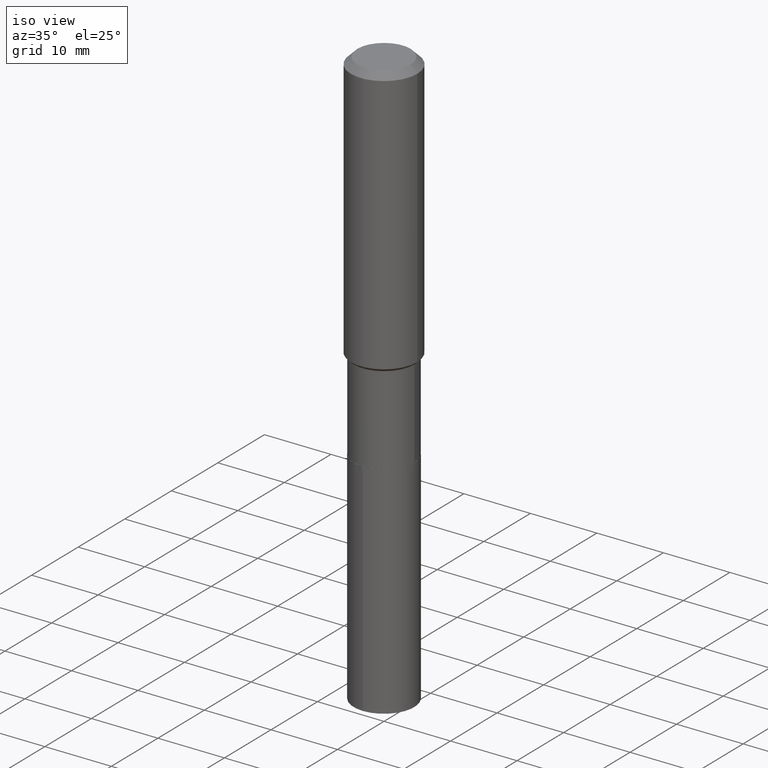
[diagram: clean part render]
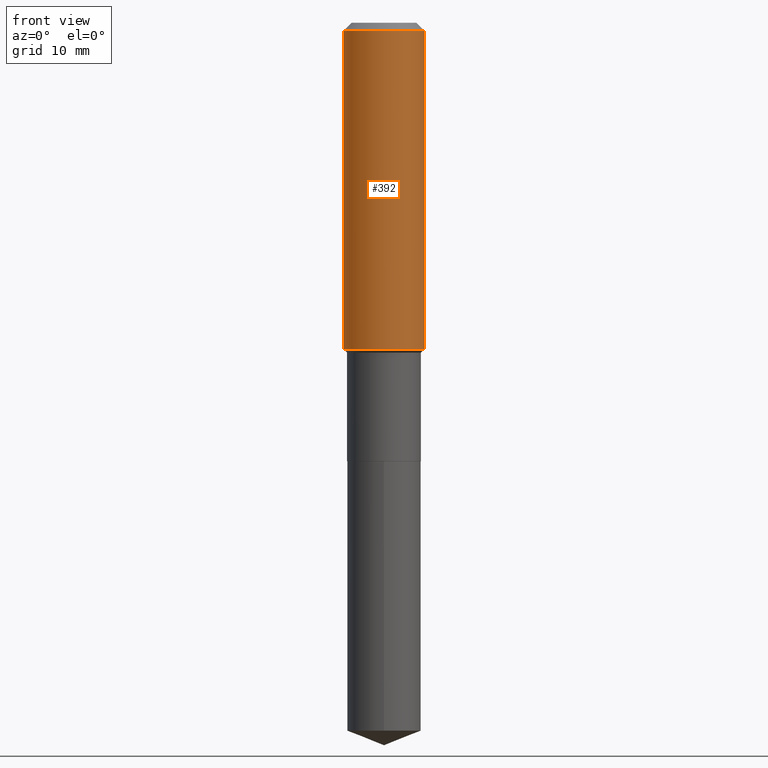
[diagram: tour spotlight — one face highlighted and labeled with its STEP entity id]
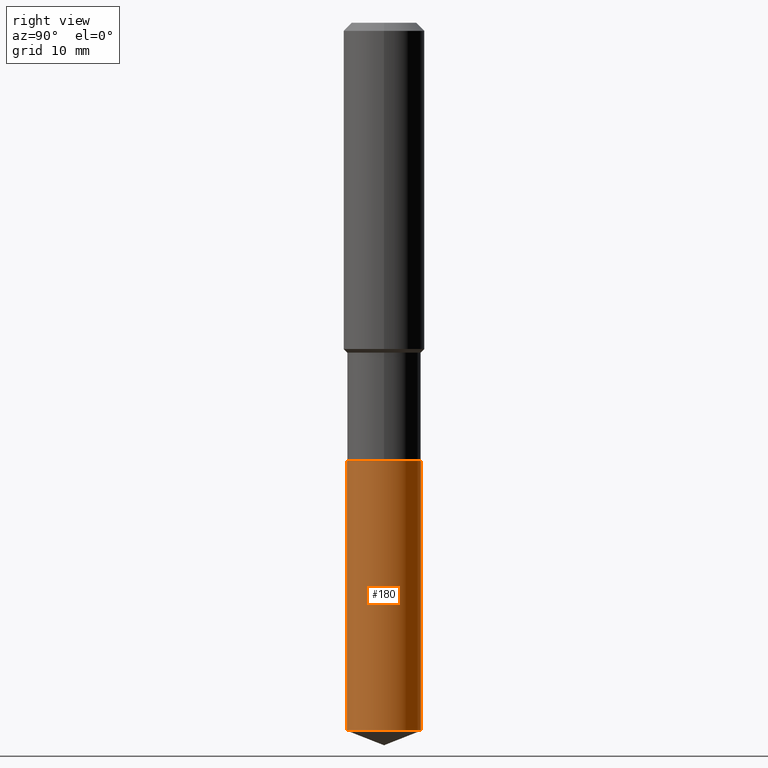
[diagram: tour spotlight — one face highlighted and labeled with its STEP entity id]
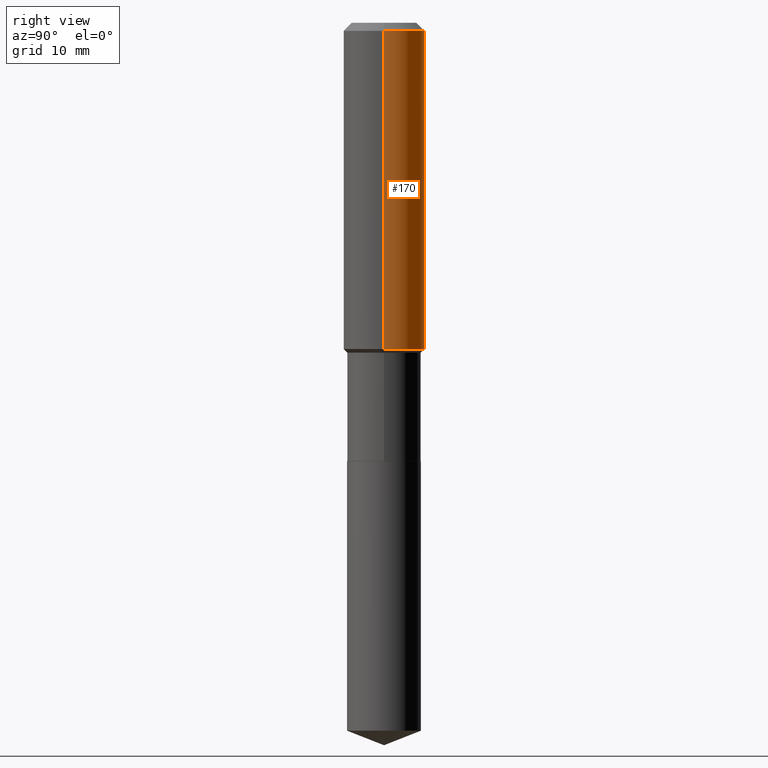
[diagram: tour spotlight — one face highlighted and labeled with its STEP entity id]
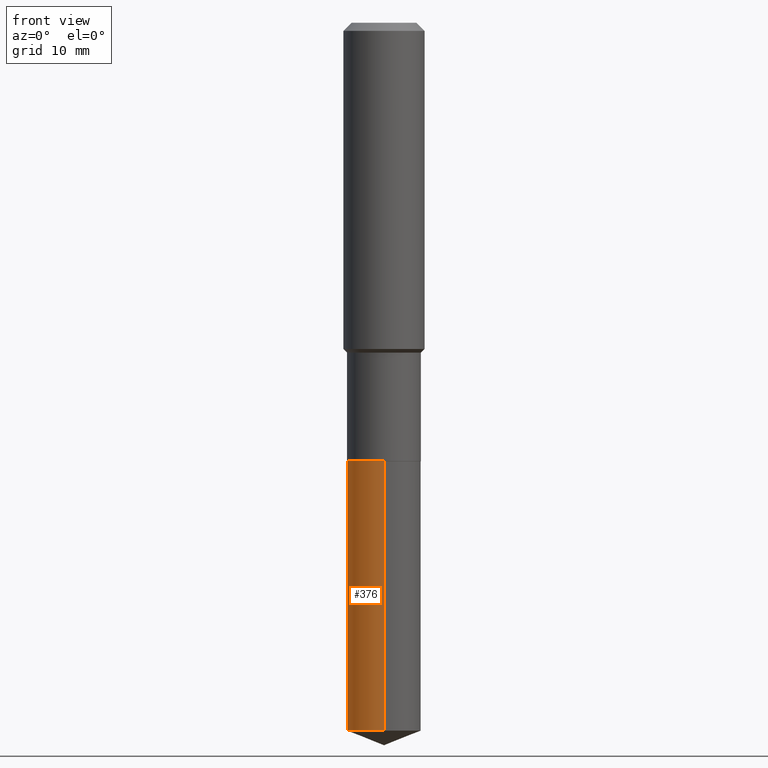
[diagram: tour spotlight — one face highlighted and labeled with its STEP entity id]
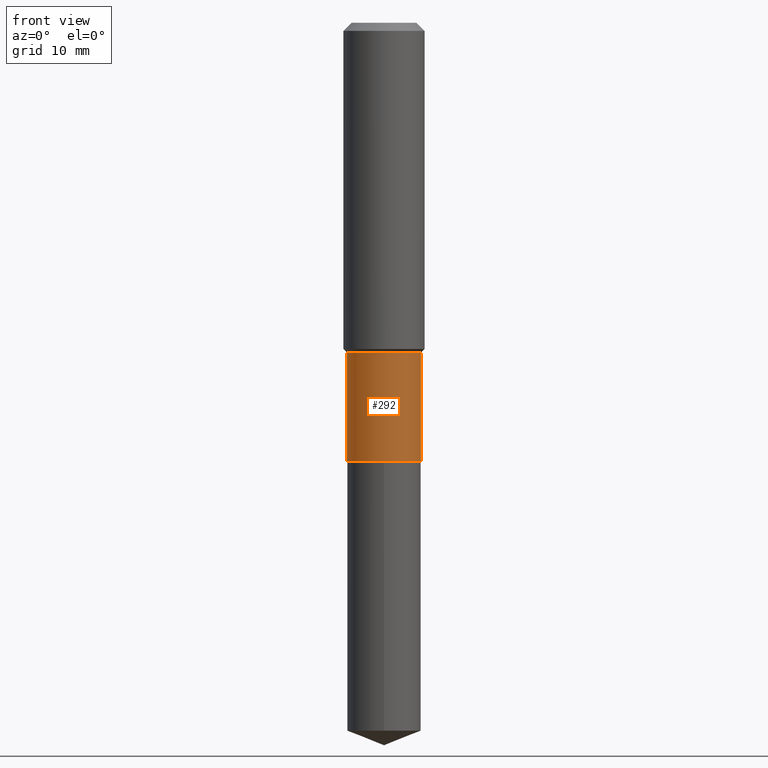
[diagram: tour spotlight — one face highlighted and labeled with its STEP entity id]
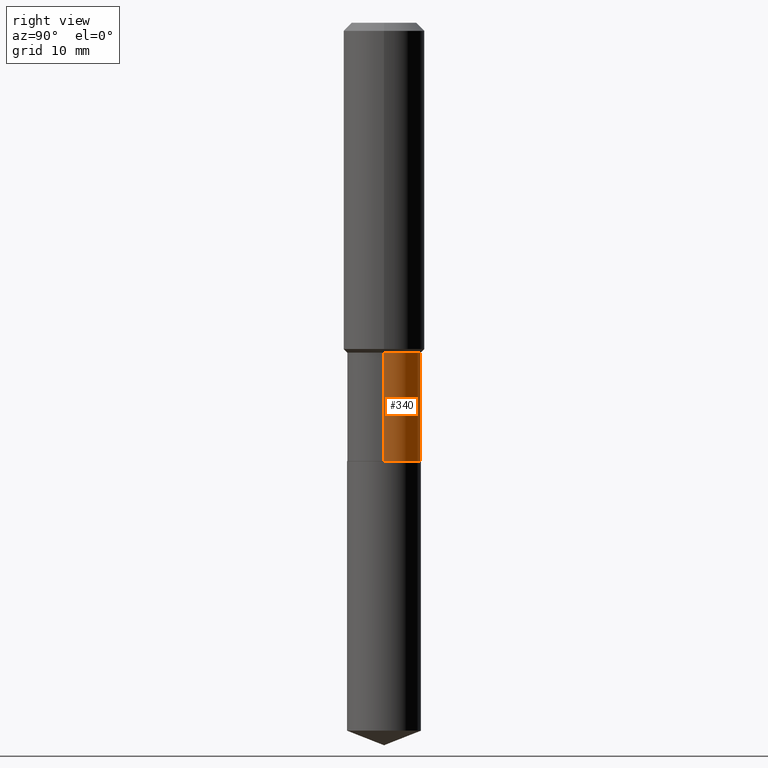
[diagram: tour spotlight — one face highlighted and labeled with its STEP entity id]
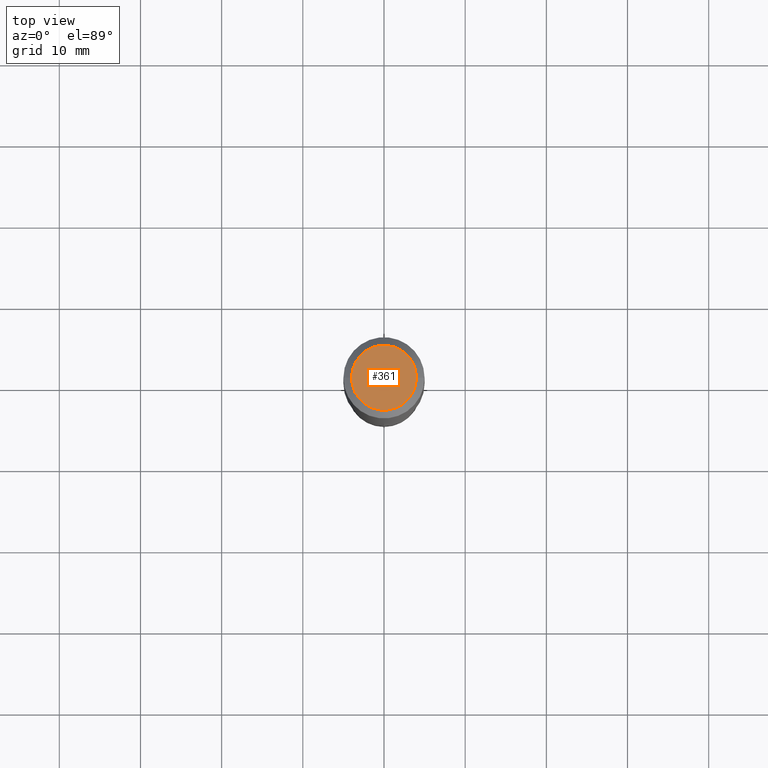
[diagram: tour spotlight — one face highlighted and labeled with its STEP entity id]
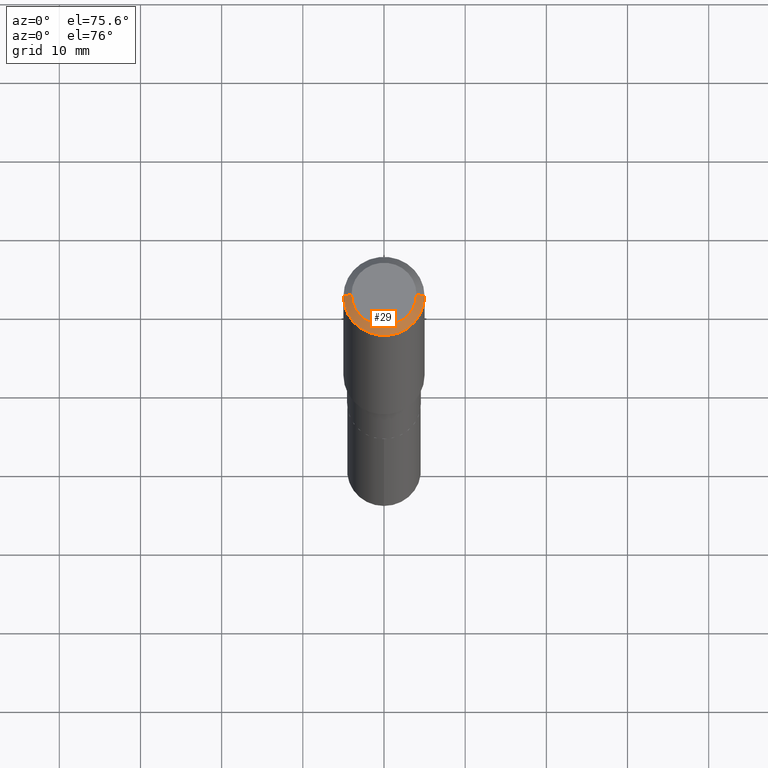
[diagram: tour spotlight — one face highlighted and labeled with its STEP entity id]
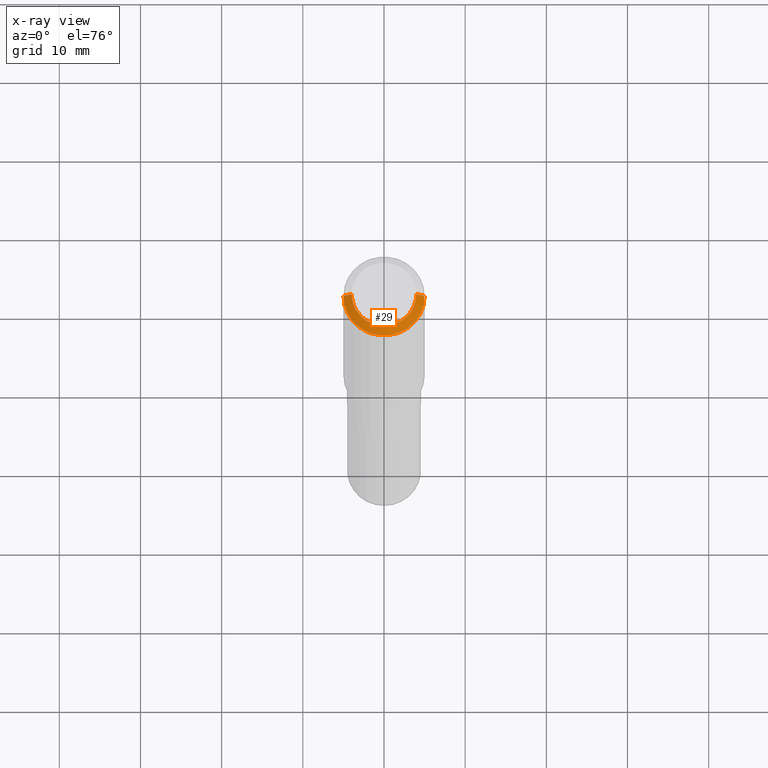
[diagram: x-ray of the same camera — body ghosted, this tour face saturated]
A machine part: a face-by-face anatomy tour. The part has 17 B-rep faces; the first image is the clean iso view, then the 8 largest visible faces are spotlighted one at a time (largest first), each with its STEP entity span.

Face 1 — front view, entity #392. In plain terms, the highlighted cylindrical surface (partial cylindrical patch) has radius 5 mm, axis along (-0, 0, 1).
Definition (entity closure, byte-faithful):
#1 = ORIENTED_EDGE ( 'NONE', *, *, #155, .T. ) ;
#10 = VERTEX_POINT ( 'NONE', #343 ) ;
#14 = CARTESIAN_POINT ( 'NONE',  ( 9.627810689950954155E-31, -1.374596203102556547E-16, -0.03937000000000029365 ) ) ;
#25 = VERTEX_POINT ( 'NONE', #413 ) ;
#37 = DIRECTION ( 'NONE',  ( 1.000000000000000000, -6.982962677686266711E-15, 4.876176775795935793E-29 ) ) ;
#52 = DIRECTION ( 'NONE',  ( 1.000000000000000000, -6.982962677686265922E-15, 0.000000000000000000 ) ) ;
#63 = CARTESIAN_POINT ( 'NONE',  ( -0.1968500000000001082, 1.398703375343757985E-15, -9.682923725166787881E-30 ) ) ;
#92 = CARTESIAN_POINT ( 'NONE',  ( 0.1968500000000001082, -1.374596203102542397E-15, 9.598753983154305062E-30 ) ) ;
#94 = AXIS2_PLACEMENT_3D ( 'NONE', #14, #464, #320 ) ;
#97 = ORIENTED_EDGE ( 'NONE', *, *, #212, .F. ) ;
#115 = VERTEX_POINT ( 'NONE', #241 ) ;
#124 = EDGE_CURVE ( 'NONE', #115, #25, #471, .T. ) ;
#152 = DIRECTION ( 'NONE',  ( -2.445468806185136597E-29, 3.491481338843145583E-15, 1.000000000000000000 ) ) ;
#155 = EDGE_CURVE ( 'NONE', #374, #115, #403, .T. ) ;
#174 = EDGE_CURVE ( 'NONE', #10, #25, #364, .T. ) ;
#193 = EDGE_LOOP ( 'NONE', ( #97, #1, #439, #257 ) ) ;
#212 = EDGE_CURVE ( 'NONE', #374, #10, #402, .T. ) ;
#238 = AXIS2_PLACEMENT_3D ( 'NONE', #381, #152, #37 ) ;
#241 = CARTESIAN_POINT ( 'NONE',  ( 0.1968500000000002192, -6.898468829286282504E-15, -1.582099999999999840 ) ) ;
#257 = ORIENTED_EDGE ( 'NONE', *, *, #174, .F. ) ;
#283 = AXIS2_PLACEMENT_3D ( 'NONE', #393, #286, #52 ) ;
#286 = DIRECTION ( 'NONE',  ( -2.445468806185136597E-29, 3.491481338843145583E-15, 1.000000000000000000 ) ) ;
#299 = DIRECTION ( 'NONE',  ( -2.445468806185136877E-29, 3.491481338843145188E-15, 1.000000000000000000 ) ) ;
#320 = DIRECTION ( 'NONE',  ( 1.000000000000000000, -6.982962677686265922E-15, 0.000000000000000000 ) ) ;
#341 = CYLINDRICAL_SURFACE ( 'NONE', #238, 0.1968500000000001082 ) ;
#343 = CARTESIAN_POINT ( 'NONE',  ( -0.1968500000000000250, -1.431962747903239464E-15, -0.03937000000000029365 ) ) ;
#346 = FACE_OUTER_BOUND ( 'NONE', #193, .T. ) ;
#364 = CIRCLE ( 'NONE', #94, 0.1968500000000000250 ) ;
#366 = CARTESIAN_POINT ( 'NONE',  ( -0.1968500000000002192, -4.125169250839980741E-15, -1.582099999999999840 ) ) ;
#374 = VERTEX_POINT ( 'NONE', #366 ) ;
#380 = VECTOR ( 'NONE', #299, 39.37007874015748143 ) ;
#381 = CARTESIAN_POINT ( 'NONE',  ( 0.000000000000000000, 0.000000000000000000, 0.000000000000000000 ) ) ;
#392 = ADVANCED_FACE ( 'NONE', ( #346 ), #341, .T. ) ;
#393 = CARTESIAN_POINT ( 'NONE',  ( 3.868976198265503885E-29, -5.523872626183740107E-15, -1.582099999999999840 ) ) ;
#402 = LINE ( 'NONE', #63, #380 ) ;
#403 = CIRCLE ( 'NONE', #283, 0.1968500000000002192 ) ;
#413 = CARTESIAN_POINT ( 'NONE',  ( 0.1968500000000000250, -1.512055823412797189E-15, -0.03937000000000029365 ) ) ;
#439 = ORIENTED_EDGE ( 'NONE', *, *, #124, .T. ) ;
#455 = VECTOR ( 'NONE', #467, 39.37007874015748143 ) ;
#464 = DIRECTION ( 'NONE',  ( -2.445468806185136597E-29, 3.491481338843145583E-15, 1.000000000000000000 ) ) ;
#467 = DIRECTION ( 'NONE',  ( -2.445468806185136877E-29, 3.491481338843145188E-15, 1.000000000000000000 ) ) ;
#471 = LINE ( 'NONE', #92, #455 ) ;

Face 2 — right view, entity #180. In plain terms, the highlighted cylindrical surface (partial cylindrical patch) has radius 4.5504 mm, axis along (-0, 0, 1).
Definition (entity closure, byte-faithful):
#22 = VERTEX_POINT ( 'NONE', #314 ) ;
#23 = CARTESIAN_POINT ( 'NONE',  ( 1.272937311114303917E-15, 0.1791499999999926485, -2.125900000000000567 ) ) ;
#49 = CIRCLE ( 'NONE', #466, 0.1791500000000000314 ) ;
#53 = CARTESIAN_POINT ( 'NONE',  ( 5.198822135068982087E-29, -7.422540178246643119E-15, -2.125899999999999679 ) ) ;
#89 = CYLINDRICAL_SURFACE ( 'NONE', #185, 0.1791500000000000314 ) ;
#104 = LINE ( 'NONE', #328, #470 ) ;
#106 = CARTESIAN_POINT ( 'NONE',  ( -1.250997763707442752E-15, -0.1791500000000074422, -2.125899999999999235 ) ) ;
#112 = CARTESIAN_POINT ( 'NONE',  ( -1.250997763707410803E-15, -0.1791500000000119663, -3.433330938293583046 ) ) ;
#113 = AXIS2_PLACEMENT_3D ( 'NONE', #53, #214, #169 ) ;
#119 = ORIENTED_EDGE ( 'NONE', *, *, #263, .T. ) ;
#128 = DIRECTION ( 'NONE',  ( -2.445600057802036841E-29, 3.491293379057366203E-15, 1.000000000000000000 ) ) ;
#145 = DIRECTION ( 'NONE',  ( -2.445600057802036841E-29, 3.491293379057366203E-15, 1.000000000000000000 ) ) ;
#163 = EDGE_CURVE ( 'NONE', #232, #288, #456, .T. ) ;
#169 = DIRECTION ( 'NONE',  ( -6.982962677686265133E-15, -1.000000000000000000, 3.049788438363675772E-15 ) ) ;
#179 = ORIENTED_EDGE ( 'NONE', *, *, #280, .F. ) ;
#180 = ADVANCED_FACE ( 'NONE', ( #357 ), #89, .T. ) ;
#183 = ORIENTED_EDGE ( 'NONE', *, *, #211, .T. ) ;
#185 = AXIS2_PLACEMENT_3D ( 'NONE', #468, #128, #287 ) ;
#211 = EDGE_CURVE ( 'NONE', #22, #288, #256, .T. ) ;
#214 = DIRECTION ( 'NONE',  ( -2.445600057802036841E-29, 3.491293379057366203E-15, 1.000000000000000000 ) ) ;
#225 = CARTESIAN_POINT ( 'NONE',  ( 1.272937311114271377E-15, 0.1791499999999926207, -2.125900000000000567 ) ) ;
#232 = VERTEX_POINT ( 'NONE', #106 ) ;
#250 = VECTOR ( 'NONE', #145, 39.37007874015748143 ) ;
#256 = LINE ( 'NONE', #225, #250 ) ;
#258 = DIRECTION ( 'NONE',  ( -6.982962677686265133E-15, -1.000000000000000000, 3.049788438363675772E-15 ) ) ;
#260 = EDGE_LOOP ( 'NONE', ( #119, #183, #449, #179 ) ) ;
#263 = EDGE_CURVE ( 'NONE', #352, #22, #49, .T. ) ;
#280 = EDGE_CURVE ( 'NONE', #352, #232, #104, .T. ) ;
#287 = DIRECTION ( 'NONE',  ( -6.982962677686265133E-15, -1.000000000000000000, 3.049788438363675772E-15 ) ) ;
#288 = VERTEX_POINT ( 'NONE', #23 ) ;
#314 = CARTESIAN_POINT ( 'NONE',  ( 1.272937311114303326E-15, 0.1791499999999880688, -3.433330938293583934 ) ) ;
#328 = CARTESIAN_POINT ( 'NONE',  ( -1.250997763707442752E-15, -0.1791500000000074422, -2.125899999999999235 ) ) ;
#352 = VERTEX_POINT ( 'NONE', #112 ) ;
#357 = FACE_OUTER_BOUND ( 'NONE', #260, .T. ) ;
#370 = DIRECTION ( 'NONE',  ( -2.445600057802036841E-29, 3.491293379057366203E-15, 1.000000000000000000 ) ) ;
#449 = ORIENTED_EDGE ( 'NONE', *, *, #163, .F. ) ;
#456 = CIRCLE ( 'NONE', #113, 0.1791500000000000314 ) ;
#466 = AXIS2_PLACEMENT_3D ( 'NONE', #483, #480, #258 ) ;
#468 = CARTESIAN_POINT ( 'NONE',  ( 5.198822135068982087E-29, -7.422540178246643119E-15, -2.125899999999999679 ) ) ;
#470 = VECTOR ( 'NONE', #370, 39.37007874015748143 ) ;
#480 = DIRECTION ( 'NONE',  ( -2.445600057802036841E-29, 3.491293379057366203E-15, 1.000000000000000000 ) ) ;
#483 = CARTESIAN_POINT ( 'NONE',  ( 8.396275313331941600E-29, -1.198716515668579060E-14, -3.433330938293583490 ) ) ;

Face 3 — right view, entity #170. In plain terms, the highlighted cylindrical surface (partial cylindrical patch) has radius 5 mm, axis along (-0, 0, 1).
Definition (entity closure, byte-faithful):
#10 = VERTEX_POINT ( 'NONE', #343 ) ;
#25 = VERTEX_POINT ( 'NONE', #413 ) ;
#32 = ORIENTED_EDGE ( 'NONE', *, *, #206, .T. ) ;
#47 = DIRECTION ( 'NONE',  ( -2.445468806185136597E-29, 3.491481338843145583E-15, 1.000000000000000000 ) ) ;
#63 = CARTESIAN_POINT ( 'NONE',  ( -0.1968500000000001082, 1.398703375343757985E-15, -9.682923725166787881E-30 ) ) ;
#92 = CARTESIAN_POINT ( 'NONE',  ( 0.1968500000000001082, -1.374596203102542397E-15, 9.598753983154305062E-30 ) ) ;
#96 = CARTESIAN_POINT ( 'NONE',  ( 3.868976198265503885E-29, -5.523872626183740107E-15, -1.582099999999999840 ) ) ;
#103 = CIRCLE ( 'NONE', #126, 0.1968500000000002192 ) ;
#109 = DIRECTION ( 'NONE',  ( 1.000000000000000000, -6.982962677686265922E-15, 0.000000000000000000 ) ) ;
#115 = VERTEX_POINT ( 'NONE', #241 ) ;
#124 = EDGE_CURVE ( 'NONE', #115, #25, #471, .T. ) ;
#126 = AXIS2_PLACEMENT_3D ( 'NONE', #96, #261, #109 ) ;
#170 = ADVANCED_FACE ( 'NONE', ( #213 ), #356, .T. ) ;
#181 = CARTESIAN_POINT ( 'NONE',  ( 9.627810689950954155E-31, -1.374596203102556547E-16, -0.03937000000000029365 ) ) ;
#203 = ORIENTED_EDGE ( 'NONE', *, *, #212, .T. ) ;
#206 = EDGE_CURVE ( 'NONE', #115, #374, #103, .T. ) ;
#212 = EDGE_CURVE ( 'NONE', #374, #10, #402, .T. ) ;
#213 = FACE_OUTER_BOUND ( 'NONE', #216, .T. ) ;
#216 = EDGE_LOOP ( 'NONE', ( #32, #203, #239, #358 ) ) ;
#239 = ORIENTED_EDGE ( 'NONE', *, *, #347, .F. ) ;
#241 = CARTESIAN_POINT ( 'NONE',  ( 0.1968500000000002192, -6.898468829286282504E-15, -1.582099999999999840 ) ) ;
#261 = DIRECTION ( 'NONE',  ( -2.445468806185136597E-29, 3.491481338843145583E-15, 1.000000000000000000 ) ) ;
#299 = DIRECTION ( 'NONE',  ( -2.445468806185136877E-29, 3.491481338843145188E-15, 1.000000000000000000 ) ) ;
#304 = DIRECTION ( 'NONE',  ( -2.445468806185136597E-29, 3.491481338843145583E-15, 1.000000000000000000 ) ) ;
#318 = CARTESIAN_POINT ( 'NONE',  ( 0.000000000000000000, 0.000000000000000000, 0.000000000000000000 ) ) ;
#330 = AXIS2_PLACEMENT_3D ( 'NONE', #181, #304, #440 ) ;
#337 = AXIS2_PLACEMENT_3D ( 'NONE', #318, #47, #355 ) ;
#343 = CARTESIAN_POINT ( 'NONE',  ( -0.1968500000000000250, -1.431962747903239464E-15, -0.03937000000000029365 ) ) ;
#347 = EDGE_CURVE ( 'NONE', #25, #10, #354, .T. ) ;
#354 = CIRCLE ( 'NONE', #330, 0.1968500000000000250 ) ;
#355 = DIRECTION ( 'NONE',  ( 1.000000000000000000, -6.982962677686266711E-15, 4.876176775795935793E-29 ) ) ;
#356 = CYLINDRICAL_SURFACE ( 'NONE', #337, 0.1968500000000001082 ) ;
#358 = ORIENTED_EDGE ( 'NONE', *, *, #124, .F. ) ;
#366 = CARTESIAN_POINT ( 'NONE',  ( -0.1968500000000002192, -4.125169250839980741E-15, -1.582099999999999840 ) ) ;
#374 = VERTEX_POINT ( 'NONE', #366 ) ;
#380 = VECTOR ( 'NONE', #299, 39.37007874015748143 ) ;
#402 = LINE ( 'NONE', #63, #380 ) ;
#413 = CARTESIAN_POINT ( 'NONE',  ( 0.1968500000000000250, -1.512055823412797189E-15, -0.03937000000000029365 ) ) ;
#440 = DIRECTION ( 'NONE',  ( 1.000000000000000000, -6.982962677686265922E-15, 0.000000000000000000 ) ) ;
#455 = VECTOR ( 'NONE', #467, 39.37007874015748143 ) ;
#467 = DIRECTION ( 'NONE',  ( -2.445468806185136877E-29, 3.491481338843145188E-15, 1.000000000000000000 ) ) ;
#471 = LINE ( 'NONE', #92, #455 ) ;

Face 4 — front view, entity #376. In plain terms, the highlighted cylindrical surface (partial cylindrical patch) has radius 4.5504 mm, axis along (-0, 0, 1).
Definition (entity closure, byte-faithful):
#6 = ORIENTED_EDGE ( 'NONE', *, *, #48, .T. ) ;
#22 = VERTEX_POINT ( 'NONE', #314 ) ;
#23 = CARTESIAN_POINT ( 'NONE',  ( 1.272937311114303917E-15, 0.1791499999999926485, -2.125900000000000567 ) ) ;
#26 = CIRCLE ( 'NONE', #249, 0.1791500000000000314 ) ;
#48 = EDGE_CURVE ( 'NONE', #22, #352, #142, .T. ) ;
#72 = EDGE_CURVE ( 'NONE', #288, #232, #26, .T. ) ;
#104 = LINE ( 'NONE', #328, #470 ) ;
#106 = CARTESIAN_POINT ( 'NONE',  ( -1.250997763707442752E-15, -0.1791500000000074422, -2.125899999999999235 ) ) ;
#112 = CARTESIAN_POINT ( 'NONE',  ( -1.250997763707410803E-15, -0.1791500000000119663, -3.433330938293583046 ) ) ;
#114 = DIRECTION ( 'NONE',  ( -2.445600057802036841E-29, 3.491293379057366203E-15, 1.000000000000000000 ) ) ;
#142 = CIRCLE ( 'NONE', #319, 0.1791500000000000314 ) ;
#145 = DIRECTION ( 'NONE',  ( -2.445600057802036841E-29, 3.491293379057366203E-15, 1.000000000000000000 ) ) ;
#157 = DIRECTION ( 'NONE',  ( -6.982962677686265133E-15, -1.000000000000000000, 3.049788438363675772E-15 ) ) ;
#161 = ORIENTED_EDGE ( 'NONE', *, *, #280, .T. ) ;
#178 = FACE_OUTER_BOUND ( 'NONE', #199, .T. ) ;
#199 = EDGE_LOOP ( 'NONE', ( #444, #6, #161, #348 ) ) ;
#211 = EDGE_CURVE ( 'NONE', #22, #288, #256, .T. ) ;
#225 = CARTESIAN_POINT ( 'NONE',  ( 1.272937311114271377E-15, 0.1791499999999926207, -2.125900000000000567 ) ) ;
#232 = VERTEX_POINT ( 'NONE', #106 ) ;
#235 = DIRECTION ( 'NONE',  ( -6.982962677686265133E-15, -1.000000000000000000, 3.049788438363675772E-15 ) ) ;
#237 = DIRECTION ( 'NONE',  ( -6.982962677686265133E-15, -1.000000000000000000, 3.049788438363675772E-15 ) ) ;
#249 = AXIS2_PLACEMENT_3D ( 'NONE', #349, #448, #235 ) ;
#250 = VECTOR ( 'NONE', #145, 39.37007874015748143 ) ;
#256 = LINE ( 'NONE', #225, #250 ) ;
#280 = EDGE_CURVE ( 'NONE', #352, #232, #104, .T. ) ;
#288 = VERTEX_POINT ( 'NONE', #23 ) ;
#307 = CARTESIAN_POINT ( 'NONE',  ( 8.396275313331941600E-29, -1.198716515668579060E-14, -3.433330938293583490 ) ) ;
#314 = CARTESIAN_POINT ( 'NONE',  ( 1.272937311114303326E-15, 0.1791499999999880688, -3.433330938293583934 ) ) ;
#319 = AXIS2_PLACEMENT_3D ( 'NONE', #307, #462, #157 ) ;
#326 = CYLINDRICAL_SURFACE ( 'NONE', #424, 0.1791500000000000314 ) ;
#328 = CARTESIAN_POINT ( 'NONE',  ( -1.250997763707442752E-15, -0.1791500000000074422, -2.125899999999999235 ) ) ;
#348 = ORIENTED_EDGE ( 'NONE', *, *, #72, .F. ) ;
#349 = CARTESIAN_POINT ( 'NONE',  ( 5.198822135068982087E-29, -7.422540178246643119E-15, -2.125899999999999679 ) ) ;
#352 = VERTEX_POINT ( 'NONE', #112 ) ;
#370 = DIRECTION ( 'NONE',  ( -2.445600057802036841E-29, 3.491293379057366203E-15, 1.000000000000000000 ) ) ;
#376 = ADVANCED_FACE ( 'NONE', ( #178 ), #326, .T. ) ;
#424 = AXIS2_PLACEMENT_3D ( 'NONE', #478, #114, #237 ) ;
#444 = ORIENTED_EDGE ( 'NONE', *, *, #211, .F. ) ;
#448 = DIRECTION ( 'NONE',  ( -2.445600057802036841E-29, 3.491293379057366203E-15, 1.000000000000000000 ) ) ;
#462 = DIRECTION ( 'NONE',  ( -2.445600057802036841E-29, 3.491293379057366203E-15, 1.000000000000000000 ) ) ;
#470 = VECTOR ( 'NONE', #370, 39.37007874015748143 ) ;
#478 = CARTESIAN_POINT ( 'NONE',  ( 5.198822135068982087E-29, -7.422540178246643119E-15, -2.125899999999999679 ) ) ;

Face 5 — front view, entity #292. In plain terms, the highlighted cylindrical surface (partial cylindrical patch) has radius 4.5504 mm, axis along (-0, 0, 1).
Definition (entity closure, byte-faithful):
#3 = VERTEX_POINT ( 'NONE', #272 ) ;
#19 = DIRECTION ( 'NONE',  ( -2.445468806185136877E-29, 3.491481338843145188E-15, 1.000000000000000000 ) ) ;
#20 = CARTESIAN_POINT ( 'NONE',  ( 0.1791499999999999759, -1.250997763707494620E-15, 8.735670693838418171E-30 ) ) ;
#27 = FACE_OUTER_BOUND ( 'NONE', #436, .T. ) ;
#58 = DIRECTION ( 'NONE',  ( -2.445468806185136877E-29, 3.491481338843145188E-15, 1.000000000000000000 ) ) ;
#61 = DIRECTION ( 'NONE',  ( 1.000000000000000000, -6.982962677686267499E-15, 0.000000000000000000 ) ) ;
#70 = DIRECTION ( 'NONE',  ( -2.445468806185136597E-29, 3.491481338843145583E-15, 1.000000000000000000 ) ) ;
#87 = CIRCLE ( 'NONE', #184, 0.1791499999999999482 ) ;
#117 = EDGE_CURVE ( 'NONE', #463, #166, #87, .T. ) ;
#139 = CARTESIAN_POINT ( 'NONE',  ( 5.197599400665889285E-29, -7.420794437577220826E-15, -2.125399999999999956 ) ) ;
#166 = VERTEX_POINT ( 'NONE', #289 ) ;
#171 = AXIS2_PLACEMENT_3D ( 'NONE', #437, #70, #332 ) ;
#176 = VECTOR ( 'NONE', #58, 39.37007874015748143 ) ;
#184 = AXIS2_PLACEMENT_3D ( 'NONE', #362, #321, #282 ) ;
#186 = CYLINDRICAL_SURFACE ( 'NONE', #171, 0.1791499999999999759 ) ;
#219 = LINE ( 'NONE', #20, #176 ) ;
#230 = ORIENTED_EDGE ( 'NONE', *, *, #303, .T. ) ;
#231 = CARTESIAN_POINT ( 'NONE',  ( -0.1791499999999999759, 1.272937311114219312E-15, -8.812272214191663486E-30 ) ) ;
#245 = ORIENTED_EDGE ( 'NONE', *, *, #359, .F. ) ;
#251 = VERTEX_POINT ( 'NONE', #433 ) ;
#266 = EDGE_CURVE ( 'NONE', #3, #251, #296, .T. ) ;
#272 = CARTESIAN_POINT ( 'NONE',  ( -0.1791500000000000314, -5.230295830615023345E-15, -2.125399999999999956 ) ) ;
#282 = DIRECTION ( 'NONE',  ( 1.000000000000000000, -6.982962677686265133E-15, 0.000000000000000000 ) ) ;
#289 = CARTESIAN_POINT ( 'NONE',  ( 0.1791499999999999482, -6.836669609588758122E-15, -1.599799999999999889 ) ) ;
#292 = ADVANCED_FACE ( 'NONE', ( #27 ), #186, .T. ) ;
#296 = CIRCLE ( 'NONE', #404, 0.1791500000000000314 ) ;
#303 = EDGE_CURVE ( 'NONE', #251, #166, #219, .T. ) ;
#311 = CARTESIAN_POINT ( 'NONE',  ( -0.1791499999999999482, -5.230295830615023345E-15, -1.599799999999999889 ) ) ;
#321 = DIRECTION ( 'NONE',  ( -2.445468806185136597E-29, 3.491481338843145583E-15, 1.000000000000000000 ) ) ;
#332 = DIRECTION ( 'NONE',  ( 1.000000000000000000, -6.982962677686267499E-15, 4.876176775795935793E-29 ) ) ;
#359 = EDGE_CURVE ( 'NONE', #3, #463, #406, .T. ) ;
#362 = CARTESIAN_POINT ( 'NONE',  ( 3.912260996134981658E-29, -5.585671845881263700E-15, -1.599799999999999889 ) ) ;
#400 = DIRECTION ( 'NONE',  ( -2.445468806185136597E-29, 3.491481338843145583E-15, 1.000000000000000000 ) ) ;
#404 = AXIS2_PLACEMENT_3D ( 'NONE', #139, #400, #61 ) ;
#406 = LINE ( 'NONE', #231, #489 ) ;
#414 = ORIENTED_EDGE ( 'NONE', *, *, #117, .F. ) ;
#432 = ORIENTED_EDGE ( 'NONE', *, *, #266, .T. ) ;
#433 = CARTESIAN_POINT ( 'NONE',  ( 0.1791500000000000314, -8.671792201284716827E-15, -2.125399999999999956 ) ) ;
#436 = EDGE_LOOP ( 'NONE', ( #245, #432, #230, #414 ) ) ;
#437 = CARTESIAN_POINT ( 'NONE',  ( 0.000000000000000000, 0.000000000000000000, 0.000000000000000000 ) ) ;
#463 = VERTEX_POINT ( 'NONE', #311 ) ;
#489 = VECTOR ( 'NONE', #19, 39.37007874015748143 ) ;

Face 6 — right view, entity #340. In plain terms, the highlighted cylindrical surface (partial cylindrical patch) has radius 4.5504 mm, axis along (-0, 0, 1).
Definition (entity closure, byte-faithful):
#3 = VERTEX_POINT ( 'NONE', #272 ) ;
#9 = EDGE_CURVE ( 'NONE', #251, #3, #194, .T. ) ;
#19 = DIRECTION ( 'NONE',  ( -2.445468806185136877E-29, 3.491481338843145188E-15, 1.000000000000000000 ) ) ;
#20 = CARTESIAN_POINT ( 'NONE',  ( 0.1791499999999999759, -1.250997763707494620E-15, 8.735670693838418171E-30 ) ) ;
#40 = DIRECTION ( 'NONE',  ( -2.445468806185136597E-29, 3.491481338843145583E-15, 1.000000000000000000 ) ) ;
#58 = DIRECTION ( 'NONE',  ( -2.445468806185136877E-29, 3.491481338843145188E-15, 1.000000000000000000 ) ) ;
#91 = DIRECTION ( 'NONE',  ( 1.000000000000000000, -6.982962677686265133E-15, 0.000000000000000000 ) ) ;
#108 = ORIENTED_EDGE ( 'NONE', *, *, #359, .T. ) ;
#130 = AXIS2_PLACEMENT_3D ( 'NONE', #390, #210, #91 ) ;
#144 = EDGE_CURVE ( 'NONE', #166, #463, #353, .T. ) ;
#166 = VERTEX_POINT ( 'NONE', #289 ) ;
#176 = VECTOR ( 'NONE', #58, 39.37007874015748143 ) ;
#189 = CARTESIAN_POINT ( 'NONE',  ( 0.000000000000000000, 0.000000000000000000, 0.000000000000000000 ) ) ;
#194 = CIRCLE ( 'NONE', #442, 0.1791500000000000314 ) ;
#201 = ORIENTED_EDGE ( 'NONE', *, *, #303, .F. ) ;
#210 = DIRECTION ( 'NONE',  ( -2.445468806185136597E-29, 3.491481338843145583E-15, 1.000000000000000000 ) ) ;
#219 = LINE ( 'NONE', #20, #176 ) ;
#223 = FACE_OUTER_BOUND ( 'NONE', #278, .T. ) ;
#231 = CARTESIAN_POINT ( 'NONE',  ( -0.1791499999999999759, 1.272937311114219312E-15, -8.812272214191663486E-30 ) ) ;
#251 = VERTEX_POINT ( 'NONE', #433 ) ;
#254 = AXIS2_PLACEMENT_3D ( 'NONE', #189, #334, #430 ) ;
#272 = CARTESIAN_POINT ( 'NONE',  ( -0.1791500000000000314, -5.230295830615023345E-15, -2.125399999999999956 ) ) ;
#278 = EDGE_LOOP ( 'NONE', ( #419, #108, #401, #201 ) ) ;
#289 = CARTESIAN_POINT ( 'NONE',  ( 0.1791499999999999482, -6.836669609588758122E-15, -1.599799999999999889 ) ) ;
#303 = EDGE_CURVE ( 'NONE', #251, #166, #219, .T. ) ;
#311 = CARTESIAN_POINT ( 'NONE',  ( -0.1791499999999999482, -5.230295830615023345E-15, -1.599799999999999889 ) ) ;
#316 = DIRECTION ( 'NONE',  ( 1.000000000000000000, -6.982962677686267499E-15, 0.000000000000000000 ) ) ;
#334 = DIRECTION ( 'NONE',  ( -2.445468806185136597E-29, 3.491481338843145583E-15, 1.000000000000000000 ) ) ;
#339 = CARTESIAN_POINT ( 'NONE',  ( 5.197599400665889285E-29, -7.420794437577220826E-15, -2.125399999999999956 ) ) ;
#340 = ADVANCED_FACE ( 'NONE', ( #223 ), #487, .T. ) ;
#353 = CIRCLE ( 'NONE', #130, 0.1791499999999999482 ) ;
#359 = EDGE_CURVE ( 'NONE', #3, #463, #406, .T. ) ;
#390 = CARTESIAN_POINT ( 'NONE',  ( 3.912260996134981658E-29, -5.585671845881263700E-15, -1.599799999999999889 ) ) ;
#401 = ORIENTED_EDGE ( 'NONE', *, *, #144, .F. ) ;
#406 = LINE ( 'NONE', #231, #489 ) ;
#419 = ORIENTED_EDGE ( 'NONE', *, *, #9, .T. ) ;
#430 = DIRECTION ( 'NONE',  ( 1.000000000000000000, -6.982962677686267499E-15, 4.876176775795935793E-29 ) ) ;
#433 = CARTESIAN_POINT ( 'NONE',  ( 0.1791500000000000314, -8.671792201284716827E-15, -2.125399999999999956 ) ) ;
#442 = AXIS2_PLACEMENT_3D ( 'NONE', #339, #40, #316 ) ;
#463 = VERTEX_POINT ( 'NONE', #311 ) ;
#487 = CYLINDRICAL_SURFACE ( 'NONE', #254, 0.1791499999999999759 ) ;
#489 = VECTOR ( 'NONE', #19, 39.37007874015748143 ) ;

Face 7 — top view, entity #361. In plain terms, the highlighted planar face has unit normal (0, -0, -1).
Definition (entity closure, byte-faithful):
#46 = CARTESIAN_POINT ( 'NONE',  ( -0.1574800000000000089, 1.168406772637159618E-15, 3.855188123707939751E-18 ) ) ;
#65 = ORIENTED_EDGE ( 'NONE', *, *, #83, .T. ) ;
#83 = EDGE_CURVE ( 'NONE', #162, #160, #379, .T. ) ;
#118 = DIRECTION ( 'NONE',  ( -2.445468806185136597E-29, 3.491481338843145583E-15, 1.000000000000000000 ) ) ;
#137 = DIRECTION ( 'NONE',  ( 2.438088387897960049E-29, -3.491481338843145188E-15, -1.000000000000000000 ) ) ;
#160 = VERTEX_POINT ( 'NONE', #387 ) ;
#162 = VERTEX_POINT ( 'NONE', #46 ) ;
#168 = EDGE_LOOP ( 'NONE', ( #65, #285 ) ) ;
#177 = FACE_OUTER_BOUND ( 'NONE', #168, .T. ) ;
#209 = AXIS2_PLACEMENT_3D ( 'NONE', #452, #118, #460 ) ;
#253 = DIRECTION ( 'NONE',  ( -1.000000000000000000, 6.982962677686265922E-15, -4.876176775795935793E-29 ) ) ;
#267 = AXIS2_PLACEMENT_3D ( 'NONE', #277, #416, #378 ) ;
#277 = CARTESIAN_POINT ( 'NONE',  ( -9.427742298522567634E-47, 1.346031739168368355E-32, 3.855188123715870730E-18 ) ) ;
#285 = ORIENTED_EDGE ( 'NONE', *, *, #453, .T. ) ;
#324 = AXIS2_PLACEMENT_3D ( 'NONE', #476, #137, #253 ) ;
#325 = PLANE ( 'NONE',  #324 ) ;
#361 = ADVANCED_FACE ( 'NONE', ( #177 ), #325, .F. ) ;
#378 = DIRECTION ( 'NONE',  ( 1.000000000000000000, -6.982962677686265922E-15, 4.876223630392693006E-29 ) ) ;
#379 = CIRCLE ( 'NONE', #267, 0.1574800000000000089 ) ;
#387 = CARTESIAN_POINT ( 'NONE',  ( 0.1574800000000000089, -1.284169937930321189E-15, 3.855188123724205385E-18 ) ) ;
#412 = CIRCLE ( 'NONE', #209, 0.1574800000000000089 ) ;
#416 = DIRECTION ( 'NONE',  ( -2.445468806185136597E-29, 3.491481338843145583E-15, 1.000000000000000000 ) ) ;
#452 = CARTESIAN_POINT ( 'NONE',  ( -9.427742298522567634E-47, 1.346031739168368355E-32, 3.855188123715870730E-18 ) ) ;
#453 = EDGE_CURVE ( 'NONE', #160, #162, #412, .T. ) ;
#460 = DIRECTION ( 'NONE',  ( 1.000000000000000000, -6.982962677686265922E-15, 4.876223630392693006E-29 ) ) ;
#476 = CARTESIAN_POINT ( 'NONE',  ( -4.713871149261283817E-47, 6.730158695841841775E-33, 1.927594061857935365E-18 ) ) ;

Face 8 — auxiliary view, entity #29. An x-ray twin of the same camera follows (body ghosted, this face saturated) — the face is partly hidden behind the body. In plain terms, the highlighted conical surface has half-angle 45 deg.
Definition (entity closure, byte-faithful):
#10 = VERTEX_POINT ( 'NONE', #343 ) ;
#14 = CARTESIAN_POINT ( 'NONE',  ( 9.627810689950954155E-31, -1.374596203102556547E-16, -0.03937000000000029365 ) ) ;
#25 = VERTEX_POINT ( 'NONE', #413 ) ;
#29 = ADVANCED_FACE ( 'NONE', ( #41 ), #35, .T. ) ;
#34 = DIRECTION ( 'NONE',  ( 2.445468806185136597E-29, -3.491481338843145583E-15, -1.000000000000000000 ) ) ;
#35 = CONICAL_SURFACE ( 'NONE', #243, 0.1968500000000000250, 0.7853981633974447263 ) ;
#38 = CARTESIAN_POINT ( 'NONE',  ( 9.627810689950954155E-31, -1.374596203102556547E-16, -0.03937000000000029365 ) ) ;
#41 = FACE_OUTER_BOUND ( 'NONE', #188, .T. ) ;
#46 = CARTESIAN_POINT ( 'NONE',  ( -0.1574800000000000089, 1.168406772637159618E-15, 3.855188123707939751E-18 ) ) ;
#74 = ORIENTED_EDGE ( 'NONE', *, *, #83, .F. ) ;
#81 = DIRECTION ( 'NONE',  ( -1.000000000000000000, 6.982962677686265922E-15, 0.000000000000000000 ) ) ;
#83 = EDGE_CURVE ( 'NONE', #162, #160, #379, .T. ) ;
#94 = AXIS2_PLACEMENT_3D ( 'NONE', #14, #464, #320 ) ;
#99 = EDGE_CURVE ( 'NONE', #160, #25, #309, .T. ) ;
#160 = VERTEX_POINT ( 'NONE', #387 ) ;
#162 = VERTEX_POINT ( 'NONE', #46 ) ;
#165 = VECTOR ( 'NONE', #291, 39.37007874015748143 ) ;
#174 = EDGE_CURVE ( 'NONE', #10, #25, #364, .T. ) ;
#188 = EDGE_LOOP ( 'NONE', ( #405, #74, #474, #410 ) ) ;
#229 = LINE ( 'NONE', #302, #165 ) ;
#243 = AXIS2_PLACEMENT_3D ( 'NONE', #38, #34, #81 ) ;
#267 = AXIS2_PLACEMENT_3D ( 'NONE', #277, #416, #378 ) ;
#277 = CARTESIAN_POINT ( 'NONE',  ( -9.427742298522567634E-47, 1.346031739168368355E-32, 3.855188123715870730E-18 ) ) ;
#281 = VECTOR ( 'NONE', #418, 39.37007874015748143 ) ;
#291 = DIRECTION ( 'NONE',  ( -0.7071067811865450192, 2.468850131082230634E-15, -0.7071067811865500152 ) ) ;
#301 = EDGE_CURVE ( 'NONE', #162, #10, #229, .T. ) ;
#302 = CARTESIAN_POINT ( 'NONE',  ( -0.1968500000000000250, 1.237136582792286225E-15, -0.03937000000000029365 ) ) ;
#309 = LINE ( 'NONE', #451, #281 ) ;
#320 = DIRECTION ( 'NONE',  ( 1.000000000000000000, -6.982962677686265922E-15, 0.000000000000000000 ) ) ;
#343 = CARTESIAN_POINT ( 'NONE',  ( -0.1968500000000000250, -1.431962747903239464E-15, -0.03937000000000029365 ) ) ;
#364 = CIRCLE ( 'NONE', #94, 0.1968500000000000250 ) ;
#378 = DIRECTION ( 'NONE',  ( 1.000000000000000000, -6.982962677686265922E-15, 4.876223630392693006E-29 ) ) ;
#379 = CIRCLE ( 'NONE', #267, 0.1574800000000000089 ) ;
#387 = CARTESIAN_POINT ( 'NONE',  ( 0.1574800000000000089, -1.284169937930321189E-15, 3.855188123724205385E-18 ) ) ;
#405 = ORIENTED_EDGE ( 'NONE', *, *, #99, .F. ) ;
#410 = ORIENTED_EDGE ( 'NONE', *, *, #174, .T. ) ;
#413 = CARTESIAN_POINT ( 'NONE',  ( 0.1968500000000000250, -1.512055823412797189E-15, -0.03937000000000029365 ) ) ;
#416 = DIRECTION ( 'NONE',  ( -2.445468806185136597E-29, 3.491481338843145583E-15, 1.000000000000000000 ) ) ;
#418 = DIRECTION ( 'NONE',  ( 0.7071067811865450192, -7.319954787623246579E-15, -0.7071067811865500152 ) ) ;
#451 = CARTESIAN_POINT ( 'NONE',  ( 0.1968500000000000250, -1.487948651171581601E-15, -0.03937000000000029365 ) ) ;
#464 = DIRECTION ( 'NONE',  ( -2.445468806185136597E-29, 3.491481338843145583E-15, 1.000000000000000000 ) ) ;
#474 = ORIENTED_EDGE ( 'NONE', *, *, #301, .T. ) ;